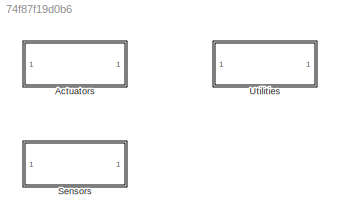
MODEL slx_74f87f19d0b6
KIND library
CONFIG AbsTol = auto
CONFIG EnableMultiTasking = off
CONFIG FixedStep = auto
CONFIG MaxStep = auto
CONFIG MinStep = auto
CONFIG RelTol = 1e-3
CONFIG SampleTimeConstraint = Unconstrained
CONFIG SolverName = VariableStepAuto
CONFIG StartTime = 0.0
CONFIG StopTime = 10.0
BLOCK [SubSystem] Actuators
BLOCK [SubSystem] Sensors
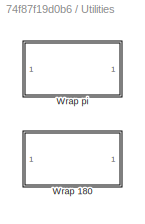
BLOCK [SubSystem] Utilities
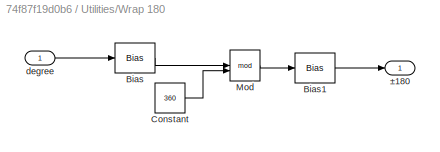
BLOCK [SubSystem] Utilities/Wrap 180
BLOCK [Bias] Utilities/Wrap 180/Bias
  Bias = 180
  SaturateOnIntegerOverflow = off
BLOCK [Bias] Utilities/Wrap 180/Bias1
  Bias = -180
  SaturateOnIntegerOverflow = off
BLOCK [Constant] Utilities/Wrap 180/Constant
  Value = 360
BLOCK [Math] Utilities/Wrap 180/Mod
  Operator = mod
BLOCK [Inport] Utilities/Wrap 180/degree
  Unit = deg
BLOCK [Outport] Utilities/Wrap 180/±180
  Unit = deg
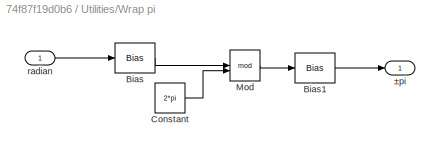
BLOCK [SubSystem] Utilities/Wrap pi
BLOCK [Bias] Utilities/Wrap pi/Bias
  Bias = pi
  SaturateOnIntegerOverflow = off
BLOCK [Bias] Utilities/Wrap pi/Bias1
  Bias = -pi
  SaturateOnIntegerOverflow = off
BLOCK [Constant] Utilities/Wrap pi/Constant
  Value = 2*pi
BLOCK [Math] Utilities/Wrap pi/Mod
  Operator = mod
BLOCK [Inport] Utilities/Wrap pi/radian
  Unit = rad
BLOCK [Outport] Utilities/Wrap pi/±pi
  Unit = rad
LINE Utilities/Wrap 180/Bias1:1 -> Utilities/Wrap 180/±180:1
LINE Utilities/Wrap 180/Bias:1 -> Utilities/Wrap 180/Mod:1
LINE Utilities/Wrap 180/Constant:1 -> Utilities/Wrap 180/Mod:2
LINE Utilities/Wrap 180/Mod:1 -> Utilities/Wrap 180/Bias1:1
LINE Utilities/Wrap 180/degree:1 -> Utilities/Wrap 180/Bias:1
LINE Utilities/Wrap pi/Bias1:1 -> Utilities/Wrap pi/±pi:1
LINE Utilities/Wrap pi/Bias:1 -> Utilities/Wrap pi/Mod:1
LINE Utilities/Wrap pi/Constant:1 -> Utilities/Wrap pi/Mod:2
LINE Utilities/Wrap pi/Mod:1 -> Utilities/Wrap pi/Bias1:1
LINE Utilities/Wrap pi/radian:1 -> Utilities/Wrap pi/Bias:1
